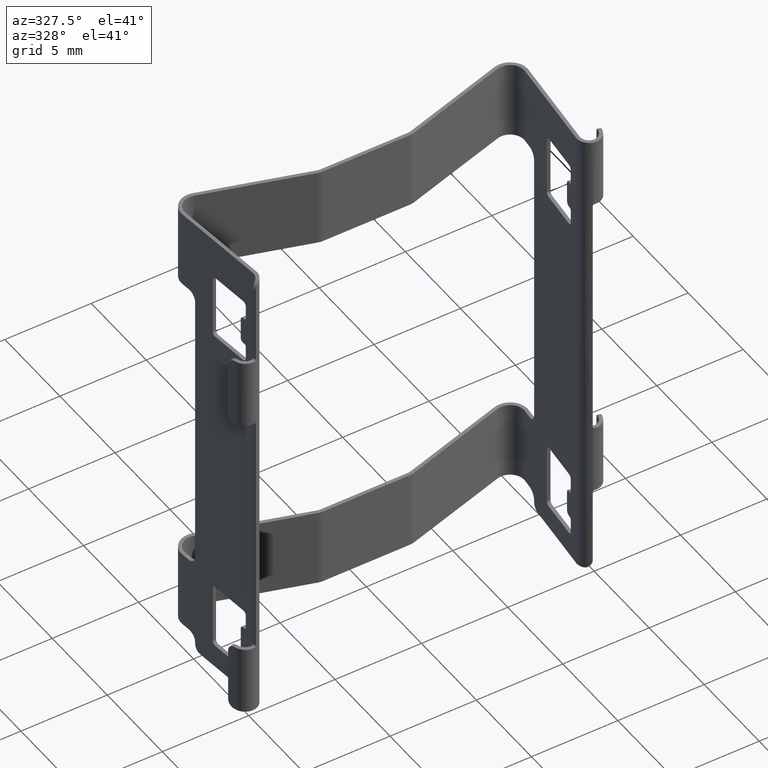
[diagram: clean part render]
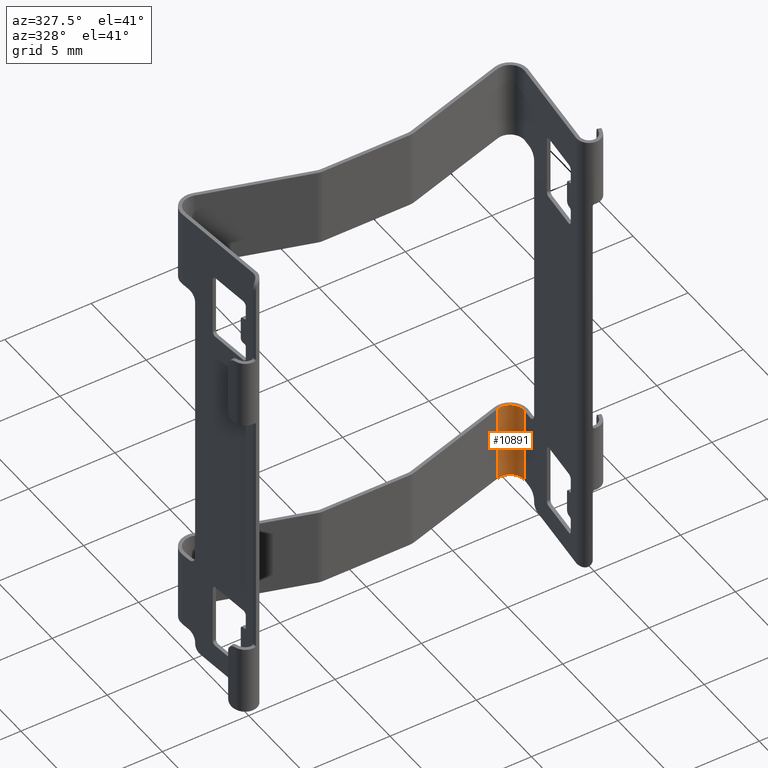
[diagram: same view with one face highlighted and labeled with its STEP entity id]
A machine part, auxiliary view. The second image highlights one B-rep face of the part: STEP entity #10891.
In plain terms, the highlighted cylindrical surface (edge-blend (fillet) strip) has radius 0.8 mm, axis along (0, 0, 1).
Its self-contained STEP definition (entity closure, byte-faithful):
#317 = CIRCLE ( 'NONE', #8889, 0.8000000000000003775 ) ;
#376 = CARTESIAN_POINT ( 'NONE',  ( 9.825000000008330403, 1.099999999455905986, -27.50000000000000000 ) ) ;
#511 = CARTESIAN_POINT ( 'NONE',  ( 8.792578643605020616, 1.865493508956570068, -22.00000000000000000 ) ) ;
#771 = ORIENTED_EDGE ( 'NONE', *, *, #9009, .F. ) ;
#842 = LINE ( 'NONE', #4776, #9611 ) ;
#1725 = DIRECTION ( 'NONE',  ( 1.000000000000000000, 0.0000000000000000000, 0.0000000000000000000 ) ) ;
#1825 = DIRECTION ( 'NONE',  ( 0.0000000000000000000, 0.0000000000000000000, 1.000000000000000000 ) ) ;
#2037 = VERTEX_POINT ( 'NONE', #7451 ) ;
#2282 = DIRECTION ( 'NONE',  ( 0.0000000000000000000, 0.0000000000000000000, 1.000000000000000000 ) ) ;
#2692 = ORIENTED_EDGE ( 'NONE', *, *, #7933, .T. ) ;
#2933 = VERTEX_POINT ( 'NONE', #5743 ) ;
#3049 = DIRECTION ( 'NONE',  ( 1.000000000000000000, 0.0000000000000000000, 0.0000000000000000000 ) ) ;
#3142 = CARTESIAN_POINT ( 'NONE',  ( 9.025000000008329692, 1.099999999455905986, -26.50000000000000000 ) ) ;
#3314 = AXIS2_PLACEMENT_3D ( 'NONE', #3142, #2282, #3049 ) ;
#3378 = CARTESIAN_POINT ( 'NONE',  ( 9.825000000008330403, 1.099999999455905986, -22.00000000000000000 ) ) ;
#3673 = EDGE_CURVE ( 'NONE', #2037, #8030, #4784, .T. ) ;
#3810 = DIRECTION ( 'NONE',  ( 0.0000000000000000000, 0.0000000000000000000, 1.000000000000000000 ) ) ;
#4402 = CARTESIAN_POINT ( 'NONE',  ( 9.025000000008329692, 1.099999999455905986, -27.50000000000000000 ) ) ;
#4776 = CARTESIAN_POINT ( 'NONE',  ( 8.792578643605020616, 1.865493508956570068, -27.50000000000000000 ) ) ;
#4784 = LINE ( 'NONE', #376, #6251 ) ;
#5114 = ORIENTED_EDGE ( 'NONE', *, *, #10641, .F. ) ;
#5743 = CARTESIAN_POINT ( 'NONE',  ( 8.792578643605020616, 1.865493508956570068, -26.50000000000000000 ) ) ;
#6172 = AXIS2_PLACEMENT_3D ( 'NONE', #4402, #9466, #1725 ) ;
#6246 = DIRECTION ( 'NONE',  ( 1.000000000000000000, 0.0000000000000000000, 0.0000000000000000000 ) ) ;
#6251 = VECTOR ( 'NONE', #1825, 1000.000000000000000 ) ;
#7151 = DIRECTION ( 'NONE',  ( 0.0000000000000000000, 0.0000000000000000000, 1.000000000000000000 ) ) ;
#7451 = CARTESIAN_POINT ( 'NONE',  ( 9.825000000008330403, 1.099999999455905986, -26.50000000000000000 ) ) ;
#7653 = FACE_OUTER_BOUND ( 'NONE', #8378, .T. ) ;
#7891 = CYLINDRICAL_SURFACE ( 'NONE', #6172, 0.8000000000000003775 ) ;
#7933 = EDGE_CURVE ( 'NONE', #8030, #10977, #317, .T. ) ;
#8030 = VERTEX_POINT ( 'NONE', #3378 ) ;
#8180 = CIRCLE ( 'NONE', #3314, 0.8000000000000003775 ) ;
#8378 = EDGE_LOOP ( 'NONE', ( #5114, #9141, #2692, #771 ) ) ;
#8889 = AXIS2_PLACEMENT_3D ( 'NONE', #9765, #7151, #6246 ) ;
#9009 = EDGE_CURVE ( 'NONE', #2933, #10977, #842, .T. ) ;
#9141 = ORIENTED_EDGE ( 'NONE', *, *, #3673, .T. ) ;
#9466 = DIRECTION ( 'NONE',  ( 0.0000000000000000000, 0.0000000000000000000, 1.000000000000000000 ) ) ;
#9611 = VECTOR ( 'NONE', #3810, 1000.000000000000000 ) ;
#9765 = CARTESIAN_POINT ( 'NONE',  ( 9.025000000008329692, 1.099999999455905986, -22.00000000000000000 ) ) ;
#10641 = EDGE_CURVE ( 'NONE', #2037, #2933, #8180, .T. ) ;
#10891 = ADVANCED_FACE ( 'NONE', ( #7653 ), #7891, .F. ) ;
#10977 = VERTEX_POINT ( 'NONE', #511 ) ;